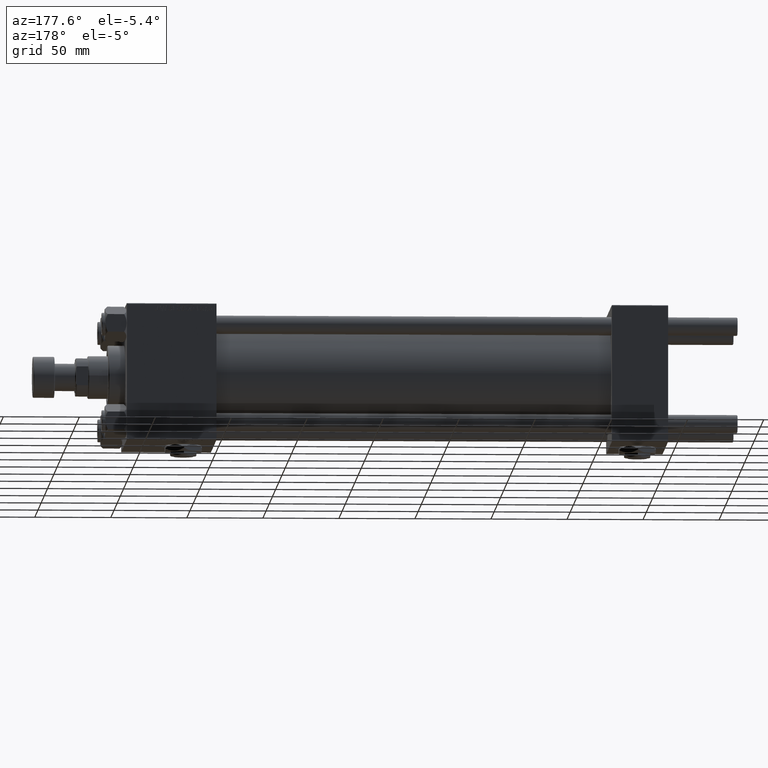
[diagram: clean part render]
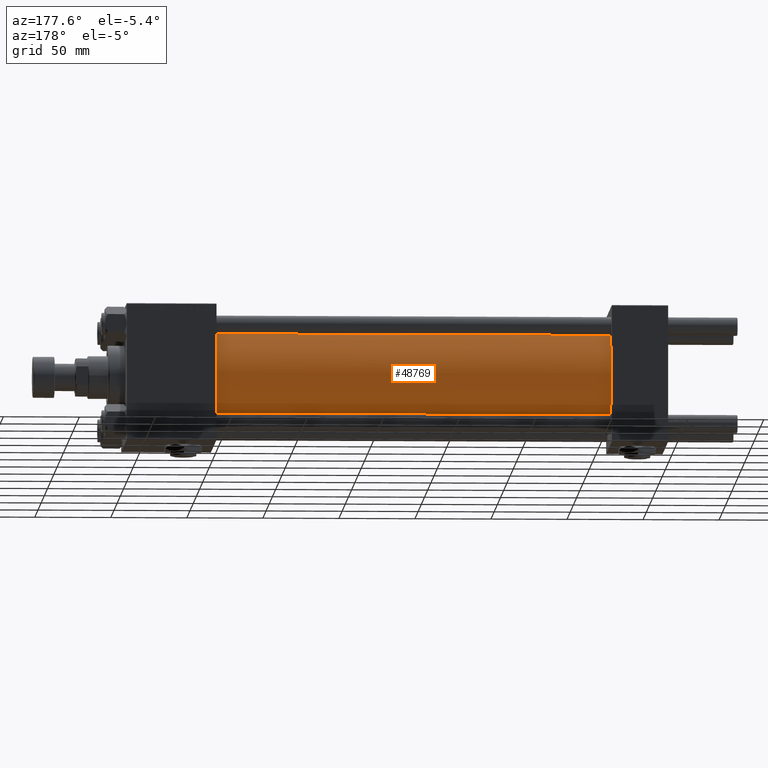
[diagram: same view with one face highlighted and labeled with its STEP entity id]
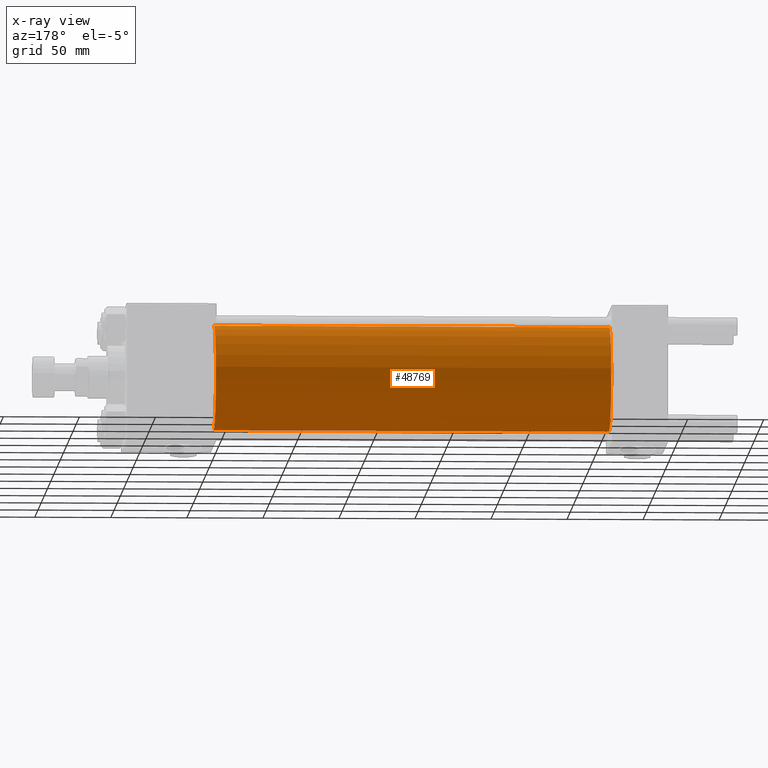
[diagram: x-ray of the same camera — body ghosted, the highlighted face saturated]
A machine part, auxiliary view. The second image highlights one B-rep face of the part: STEP entity #48769.
The next image is the same camera in x-ray: the body ghosted, the highlighted face saturated — about 0% of this face is hidden behind the body in this view.
In plain terms, the highlighted cylindrical surface (partial cylindrical patch) has radius 34.5 mm, axis along (-1, -0, -0).
Its self-contained STEP definition (entity closure, byte-faithful):
#559 = FACE_OUTER_BOUND ( 'NONE', #24191, .T. ) ;
#1386 = DIRECTION ( 'NONE',  ( -1.000000000000000000, -0.000000000000000000, -0.000000000000000000 ) ) ;
#4074 = AXIS2_PLACEMENT_3D ( 'NONE', #42510, #30064, #50173 ) ;
#5868 = CARTESIAN_POINT ( 'NONE',  ( 297.0000000000000000, 0.000000000000000000, 34.49999999999999289 ) ) ;
#6202 = ORIENTED_EDGE ( 'NONE', *, *, #18753, .T. ) ;
#6689 = CARTESIAN_POINT ( 'NONE',  ( 36.99999999999997868, 4.225031457058367344E-15, -34.49999999999999289 ) ) ;
#6837 = CARTESIAN_POINT ( 'NONE',  ( 36.99999999999997868, 0.000000000000000000, 34.49999999999999289 ) ) ;
#7029 = LINE ( 'NONE', #19180, #38732 ) ;
#8485 = DIRECTION ( 'NONE',  ( 0.000000000000000000, 0.000000000000000000, 1.000000000000000000 ) ) ;
#11119 = EDGE_CURVE ( 'NONE', #24620, #28545, #17204, .T. ) ;
#11683 = VECTOR ( 'NONE', #1386, 1000.000000000000000 ) ;
#14222 = CIRCLE ( 'NONE', #4074, 34.49999999999999289 ) ;
#16419 = VERTEX_POINT ( 'NONE', #31045 ) ;
#17204 = CIRCLE ( 'NONE', #34961, 34.49999999999999289 ) ;
#18753 = EDGE_CURVE ( 'NONE', #22759, #24620, #7029, .T. ) ;
#19019 = CARTESIAN_POINT ( 'NONE',  ( 297.0000000000000000, 4.225031457058367344E-15, -34.49999999999999289 ) ) ;
#19180 = CARTESIAN_POINT ( 'NONE',  ( 297.0000000000000000, 4.225031457058367344E-15, -34.49999999999999289 ) ) ;
#20397 = CARTESIAN_POINT ( 'NONE',  ( 36.99999999999997868, 0.000000000000000000, 0.000000000000000000 ) ) ;
#22759 = VERTEX_POINT ( 'NONE', #19019 ) ;
#24191 = EDGE_LOOP ( 'NONE', ( #24325, #6202, #44669, #38122 ) ) ;
#24325 = ORIENTED_EDGE ( 'NONE', *, *, #29684, .F. ) ;
#24620 = VERTEX_POINT ( 'NONE', #6689 ) ;
#27013 = AXIS2_PLACEMENT_3D ( 'NONE', #28572, #47914, #8485 ) ;
#28545 = VERTEX_POINT ( 'NONE', #6837 ) ;
#28572 = CARTESIAN_POINT ( 'NONE',  ( 297.0000000000000000, 0.000000000000000000, 0.000000000000000000 ) ) ;
#29684 = EDGE_CURVE ( 'NONE', #22759, #16419, #14222, .T. ) ;
#30064 = DIRECTION ( 'NONE',  ( 1.000000000000000000, 0.000000000000000000, 0.000000000000000000 ) ) ;
#30245 = EDGE_CURVE ( 'NONE', #16419, #28545, #42644, .T. ) ;
#31045 = CARTESIAN_POINT ( 'NONE',  ( 297.0000000000000000, 0.000000000000000000, 34.49999999999999289 ) ) ;
#34961 = AXIS2_PLACEMENT_3D ( 'NONE', #20397, #36827, #41767 ) ;
#35331 = DIRECTION ( 'NONE',  ( -1.000000000000000000, -0.000000000000000000, -0.000000000000000000 ) ) ;
#36827 = DIRECTION ( 'NONE',  ( 1.000000000000000000, -0.000000000000000000, 0.000000000000000000 ) ) ;
#38122 = ORIENTED_EDGE ( 'NONE', *, *, #30245, .F. ) ;
#38732 = VECTOR ( 'NONE', #35331, 1000.000000000000000 ) ;
#41767 = DIRECTION ( 'NONE',  ( 0.000000000000000000, 0.000000000000000000, 1.000000000000000000 ) ) ;
#42510 = CARTESIAN_POINT ( 'NONE',  ( 297.0000000000000000, 0.000000000000000000, 0.000000000000000000 ) ) ;
#42644 = LINE ( 'NONE', #5868, #11683 ) ;
#44669 = ORIENTED_EDGE ( 'NONE', *, *, #11119, .T. ) ;
#47914 = DIRECTION ( 'NONE',  ( -1.000000000000000000, -0.000000000000000000, -0.000000000000000000 ) ) ;
#48769 = ADVANCED_FACE ( 'NONE', ( #559 ), #48949, .T. ) ;
#48949 = CYLINDRICAL_SURFACE ( 'NONE', #27013, 34.49999999999999289 ) ;
#50173 = DIRECTION ( 'NONE',  ( 0.000000000000000000, 0.000000000000000000, -1.000000000000000000 ) ) ;